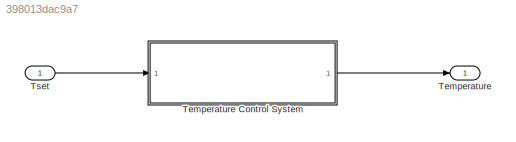
MODEL slx_398013dac9a7
KIND model
CONFIG AbsTol = auto
CONFIG EnableMultiTasking = off
CONFIG FixedStep = auto
CONFIG MaxStep = 0.1
CONFIG MinStep = auto
CONFIG RelTol = 1e-3
CONFIG SampleTimeConstraint = Unconstrained
CONFIG SolverName = FixedStepAuto
CONFIG StartTime = 0.0
CONFIG StopTime = 10.0
BLOCK [Outport] Temperature
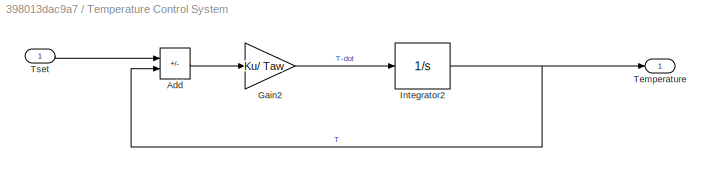
BLOCK [SubSystem] Temperature Control System
  Ports = [1, 1]
  RequestExecContextInheritance = off
BLOCK [Sum] Temperature Control System/Add
  IconShape = rectangular
  Inputs = +-
  Ports = [2, 1]
BLOCK [Gain] Temperature Control System/Gain2
  Gain = Ku/ Taw
BLOCK [Integrator] Temperature Control System/Integrator2
  Ports = [1, 1]
BLOCK [Outport] Temperature Control System/Temperature
BLOCK [Inport] Temperature Control System/Tset
BLOCK [Inport] Tset
LINE Temperature Control System/Add:1 -> Temperature Control System/Gain2:1
LINE Temperature Control System/Gain2:1 -> Temperature Control System/Integrator2:1
NET Temperature Control System/Integrator2:1 -> Temperature Control System/Add:2, Temperature Control System/Temperature:1
LINE Temperature Control System/Tset:1 -> Temperature Control System/Add:1
LINE Temperature Control System:1 -> Temperature:1
LINE Tset:1 -> Temperature Control System:1
note: NET lines group one-source signal fan-out (src -> all destinations, sorted); 1:1 wires keep LINE
